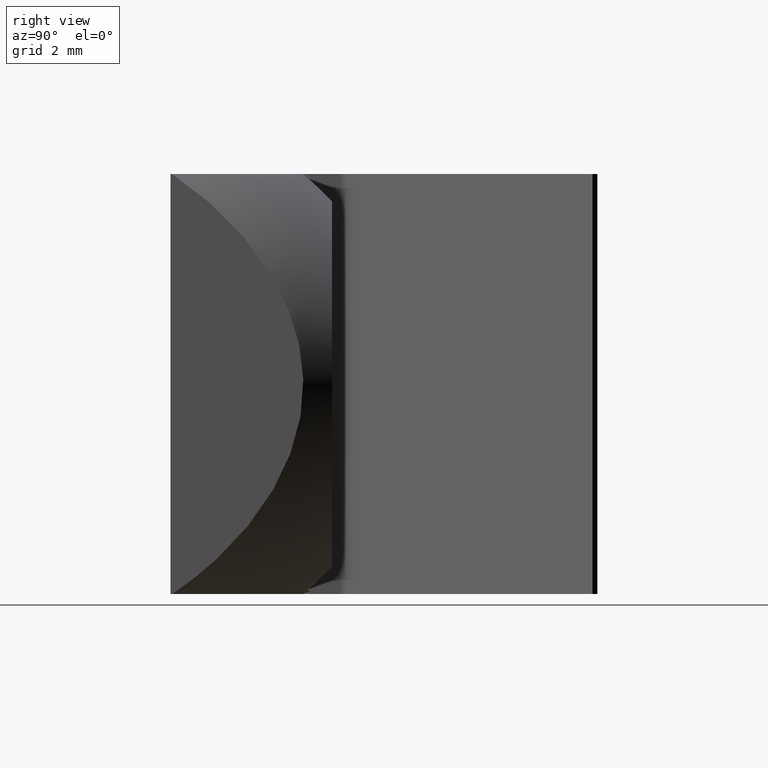
[diagram: clean part render]
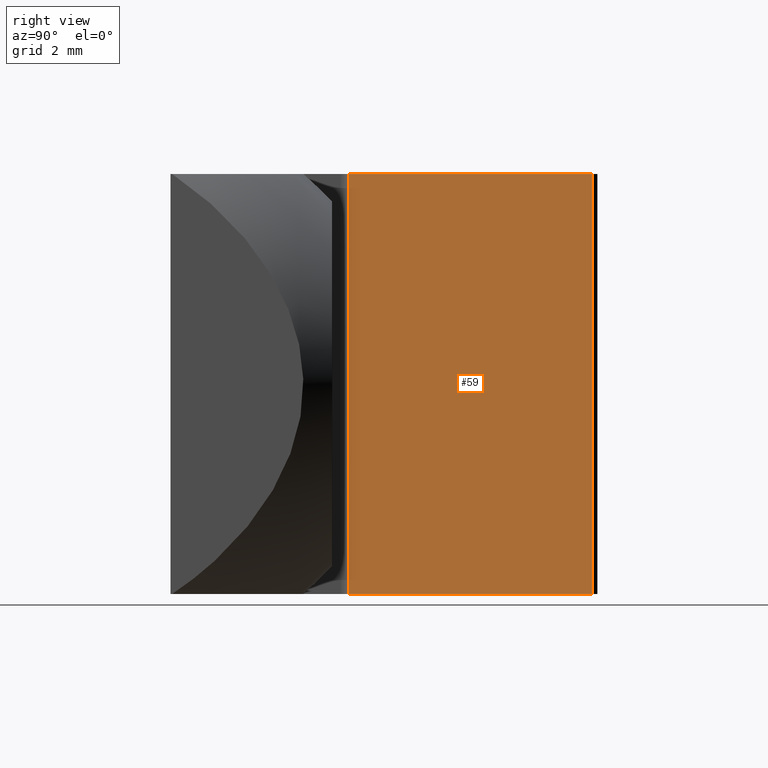
[diagram: same view with one face highlighted and labeled with its STEP entity id]
A machine part, right view. The second image highlights one B-rep face of the part: STEP entity #59.
In plain terms, the highlighted planar face has unit normal (-0.6428, 0.766, 0).
Its self-contained STEP definition (entity closure, byte-faithful):
#11 = EDGE_CURVE ( 'NONE', #491, #218, #500, .T. ) ;
#27 = EDGE_CURVE ( 'NONE', #242, #217, #439, .T. ) ;
#29 = EDGE_CURVE ( 'NONE', #218, #217, #557, .T. ) ;
#36 = EDGE_CURVE ( 'NONE', #491, #242, #573, .T. ) ;
#59 = ADVANCED_FACE ( 'NONE', ( #283 ), #427, .F. ) ;
#121 = VECTOR ( 'NONE', #426, 1000.000000000000100 ) ;
#127 = AXIS2_PLACEMENT_3D ( 'NONE', #400, #414, #432 ) ;
#129 = VECTOR ( 'NONE', #658, 1000.000000000000000 ) ;
#138 = VECTOR ( 'NONE', #655, 1000.000000000000000 ) ;
#166 = VECTOR ( 'NONE', #530, 1000.000000000000100 ) ;
#217 = VERTEX_POINT ( 'NONE', #738 ) ;
#218 = VERTEX_POINT ( 'NONE', #716 ) ;
#242 = VERTEX_POINT ( 'NONE', #581 ) ;
#283 = FACE_OUTER_BOUND ( 'NONE', #612, .T. ) ;
#284 = CARTESIAN_POINT ( 'NONE',  ( -6.192836282905961600, 5.496659503858192700, 6.500000000000000000 ) ) ;
#400 = CARTESIAN_POINT ( 'NONE',  ( -6.371442478062693500, 5.346791111376203900, 6.500000000000000000 ) ) ;
#414 = DIRECTION ( 'NONE',  ( -0.6427876096865379200, 0.7660444431189792300, 0.0000000000000000000 ) ) ;
#426 = DIRECTION ( 'NONE',  ( 0.7660444431189792300, 0.6427876096865379200, 0.0000000000000000000 ) ) ;
#427 = PLANE ( 'NONE',  #127 ) ;
#432 = DIRECTION ( 'NONE',  ( -0.7660444431189792300, -0.6427876096865379200, 0.0000000000000000000 ) ) ;
#439 = LINE ( 'NONE', #616, #129 ) ;
#456 = ORIENTED_EDGE ( 'NONE', *, *, #11, .T. ) ;
#459 = ORIENTED_EDGE ( 'NONE', *, *, #36, .F. ) ;
#460 = ORIENTED_EDGE ( 'NONE', *, *, #27, .F. ) ;
#461 = ORIENTED_EDGE ( 'NONE', *, *, #29, .T. ) ;
#491 = VERTEX_POINT ( 'NONE', #284 ) ;
#500 = LINE ( 'NONE', #790, #138 ) ;
#526 = CARTESIAN_POINT ( 'NONE',  ( -6.371442478062693500, 5.346791111376203900, -6.500000000000000000 ) ) ;
#530 = DIRECTION ( 'NONE',  ( 0.7660444431189792300, 0.6427876096865379200, 0.0000000000000000000 ) ) ;
#557 = LINE ( 'NONE', #526, #166 ) ;
#573 = LINE ( 'NONE', #798, #121 ) ;
#581 = CARTESIAN_POINT ( 'NONE',  ( 2.821090839365060000, 13.06024242761465900, 6.500000000000000000 ) ) ;
#612 = EDGE_LOOP ( 'NONE', ( #461, #460, #459, #456 ) ) ;
#616 = CARTESIAN_POINT ( 'NONE',  ( 2.821090839365060000, 13.06024242761465900, 6.500000000000000000 ) ) ;
#655 = DIRECTION ( 'NONE',  ( -0.0000000000000000000, -0.0000000000000000000, -1.000000000000000000 ) ) ;
#658 = DIRECTION ( 'NONE',  ( -0.0000000000000000000, -0.0000000000000000000, -1.000000000000000000 ) ) ;
#716 = CARTESIAN_POINT ( 'NONE',  ( -6.192836282905961600, 5.496659503858192700, -6.500000000000000000 ) ) ;
#738 = CARTESIAN_POINT ( 'NONE',  ( 2.821090839365060000, 13.06024242761465900, -6.500000000000000000 ) ) ;
#790 = CARTESIAN_POINT ( 'NONE',  ( -6.192836282905961600, 5.496659503858192700, 6.500000000000000000 ) ) ;
#798 = CARTESIAN_POINT ( 'NONE',  ( -6.371442478062693500, 5.346791111376203900, 6.500000000000000000 ) ) ;